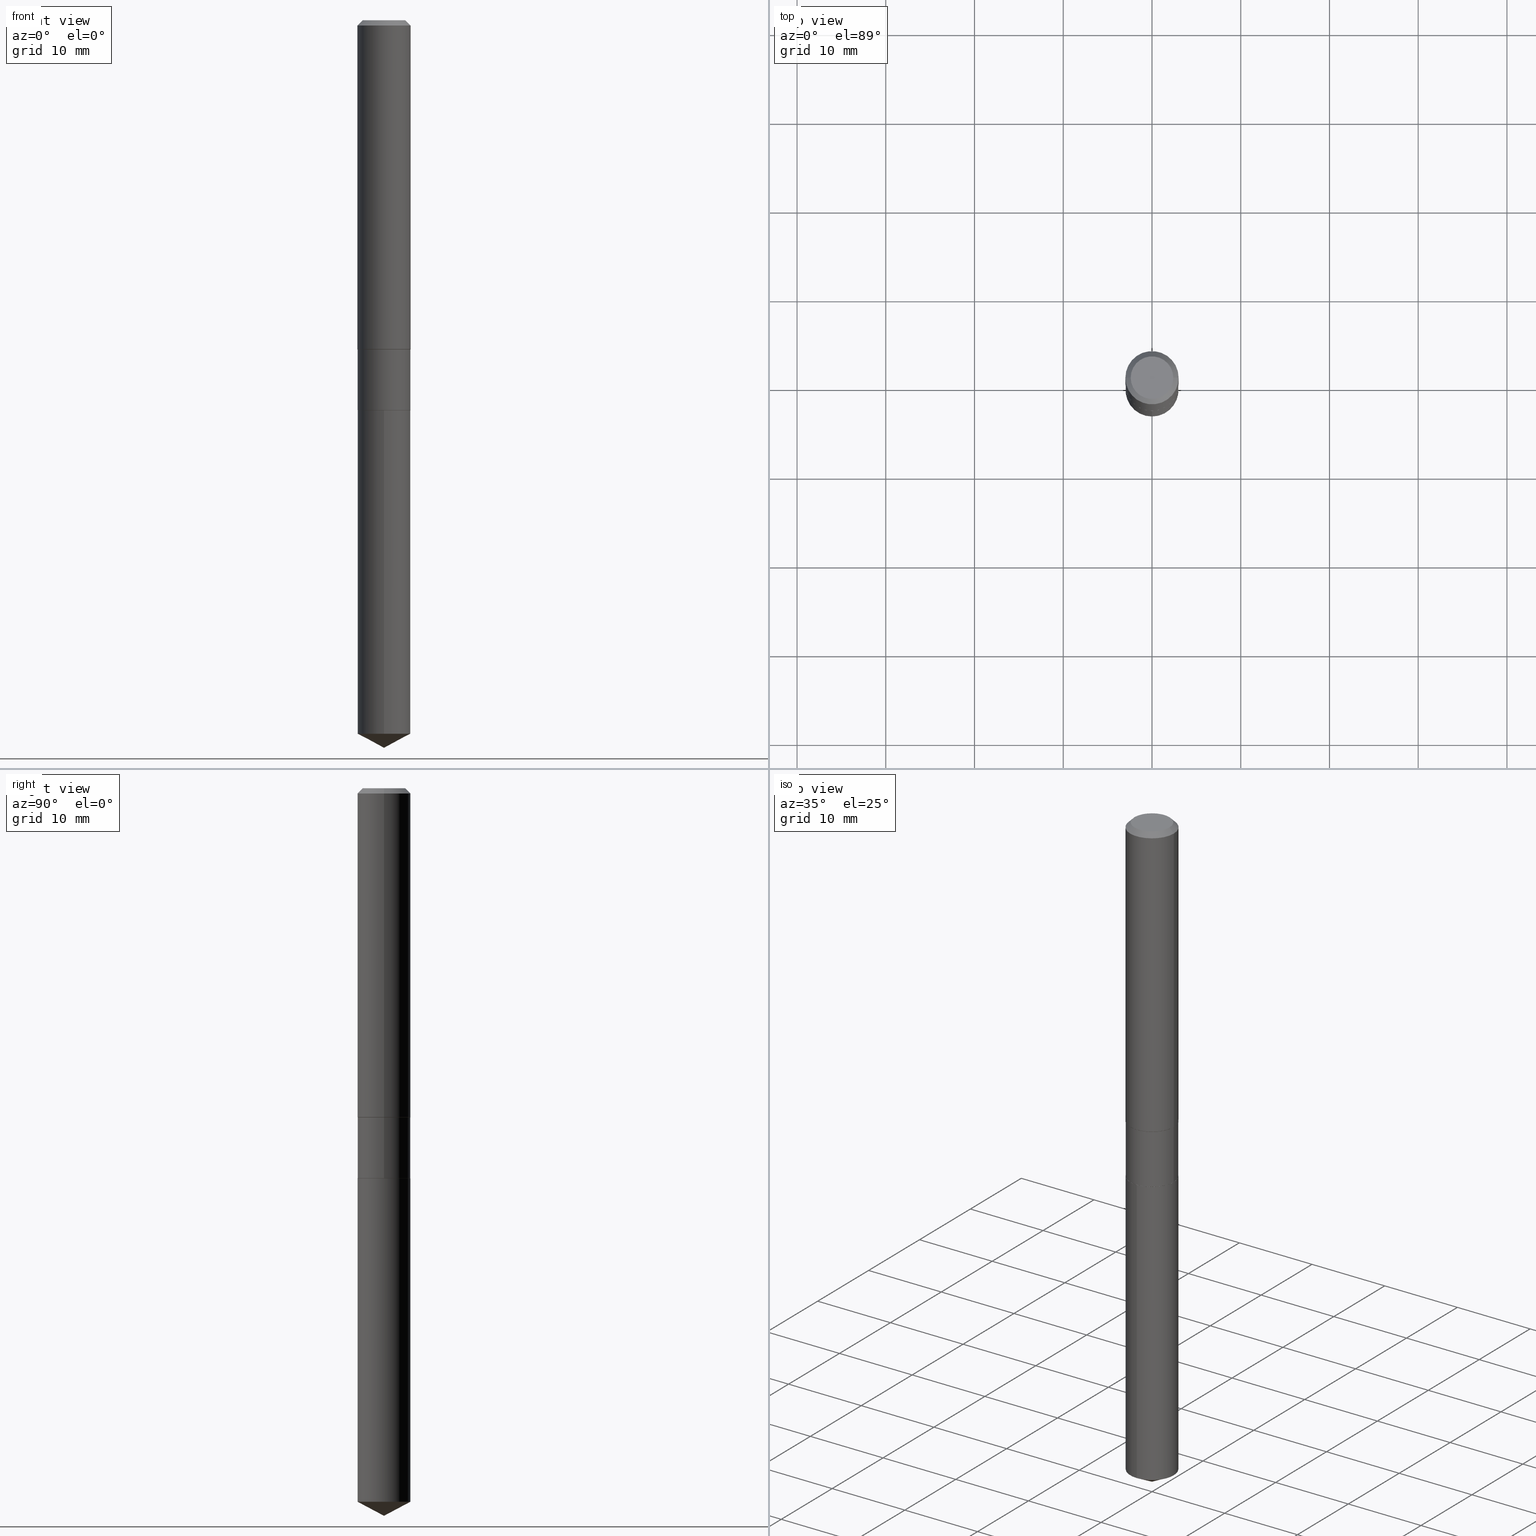
[diagram: canonical four-view strip — front | top / right | iso, engineering-drawing reading convention]
A machine part, canonical four-view strip (front | top / right | iso — engineering-drawing reading convention). The complete STEP part file that produces these views, byte-faithful:
ISO-10303-21;
HEADER;
FILE_DESCRIPTION (( 'STEP AP203' ),
    '1' );
FILE_NAME ('54809.STEP',
    '2024-04-24T15:50:24',
    ( '' ),
    ( '' ),
    'SwSTEP 2.0',
    'SolidWorks 2023',
    '' );
FILE_SCHEMA (( 'CONFIG_CONTROL_DESIGN' ));
ENDSEC;

DATA;
#1 = LENGTH_MEASURE_WITH_UNIT ( LENGTH_MEASURE( 0.02539999999999999897 ), #480 );
#2 = CARTESIAN_POINT ( 'NONE',  ( 3.572340832075246748E-29, -5.100355939782065986E-15, -1.460799999999999876 ) ) ;
#3 = PERSON_AND_ORGANIZATION_ROLE ( 'design_owner' ) ;
#4 = DATE_AND_TIME ( #342, #271 ) ;
#5 = AXIS2_PLACEMENT_3D ( 'NONE', #394, #54, #248 ) ;
#6 = LINE ( 'NONE', #238, #213 ) ;
#7 = PLANE ( 'NONE',  #293 ) ;
#8 = CARTESIAN_POINT ( 'NONE',  ( 0.1171999999999999709, -5.918759165606896047E-15, -1.460799999999999876 ) ) ;
#9 = AXIS2_PLACEMENT_3D ( 'NONE', #463, #461, #459 ) ;
#10 = AXIS2_PLACEMENT_3D ( 'NONE', #250, #20, #180 ) ;
#11 = DIRECTION ( 'NONE',  ( -2.445468806185136597E-29, 3.491481338843145583E-15, 1.000000000000000000 ) ) ;
#12 = EDGE_CURVE ( 'NONE', #139, #434, #409, .T. ) ;
#13 = ADVANCED_FACE ( 'NONE', ( #193 ), #166, .T. ) ;
#14 = CARTESIAN_POINT ( 'NONE',  ( 0.1180999999999999966, -8.926936027602933910E-16, -0.02362000000000014088 ) ) ;
#15 = LINE ( 'NONE', #182, #74 ) ;
#16 = DIRECTION ( 'NONE',  ( -2.445468806185136597E-29, 3.491481338843145583E-15, 1.000000000000000000 ) ) ;
#17 = COORDINATED_UNIVERSAL_TIME_OFFSET ( 5, 0, .BEHIND. ) ;
#18 = VERTEX_POINT ( 'NONE', #82 ) ;
#19 = ORIENTED_EDGE ( 'NONE', *, *, #105, .F. ) ;
#20 = DIRECTION ( 'NONE',  ( -2.445547445616440637E-29, 3.491368722701639557E-15, 1.000000000000000000 ) ) ;
#21 = DIRECTION ( 'NONE',  ( -2.445468806185136597E-29, 3.491481338843145583E-15, 1.000000000000000000 ) ) ;
#22 = CIRCLE ( 'NONE', #344, 0.1181000000000001632 ) ;
#23 = AXIS2_PLACEMENT_3D ( 'NONE', #61, #292, #476 ) ;
#24 = DIRECTION ( 'NONE',  ( -2.445468806185136597E-29, 3.491481338843145583E-15, 1.000000000000000000 ) ) ;
#25 = CARTESIAN_POINT ( 'NONE',  ( 7.894227154449871016E-29, -1.127013823688089218E-14, -3.228000000000000203 ) ) ;
#26 = CARTESIAN_POINT ( 'NONE',  ( 0.1171999999999999986, -6.858316793889587922E-15, -1.729899999999999993 ) ) ;
#27 = DIMENSIONAL_EXPONENTS ( 1.000000000000000000, 0.000000000000000000, 0.000000000000000000, 0.000000000000000000, 0.000000000000000000, 0.000000000000000000, 0.000000000000000000 ) ;
#28 = LINE ( 'NONE', #285, #127 ) ;
#29 = APPROVAL_DATE_TIME ( #287, #85 ) ;
#30 = PRODUCT_DEFINITION_SHAPE ( 'NONE', 'NONE',  #331 ) ;
#31 = ORIENTED_EDGE ( 'NONE', *, *, #419, .F. ) ;
#32 = CONICAL_SURFACE ( 'NONE', #424, 0.1180999999999999966, 0.7853981633974461696 ) ;
#33 = LOCAL_TIME ( 11, 50, 24.00000000000000000, #77 ) ;
#34 = ADVANCED_FACE ( 'NONE', ( #52 ), #369, .T. ) ;
#35 = PERSON_AND_ORGANIZATION ( #336, #295 ) ;
#36 = ORIENTED_EDGE ( 'NONE', *, *, #487, .F. ) ;
#37 = APPROVAL_ROLE ( '' ) ;
#38 = UNCERTAINTY_MEASURE_WITH_UNIT (LENGTH_MEASURE( 1.000000000000000082E-05 ), #335, 'distance_accuracy_value', 'NONE');
#39 = VERTEX_POINT ( 'NONE', #124 ) ;
#40 = ADVANCED_FACE ( 'NONE', ( #274 ), #7, .F. ) ;
#41 = ORIENTED_EDGE ( 'NONE', *, *, #355, .F. ) ;
#42 = AXIS2_PLACEMENT_3D ( 'NONE', #389, #11, #251 ) ;
#43 = DIRECTION ( 'NONE',  ( -0.7071067811865460184, 2.468850131082241283E-15, -0.7071067811865490160 ) ) ;
#44 = APPLICATION_PROTOCOL_DEFINITION ( 'international standard', 'config_control_design', 1994, #414 ) ;
#45 = DIRECTION ( 'NONE',  ( -2.445468806185136597E-29, 3.491481338843145583E-15, 1.000000000000000000 ) ) ;
#46 = PERSON_AND_ORGANIZATION ( #336, #295 ) ;
#47 = MANIFOLD_SOLID_BREP ( 'Body-Move/Copy2[1]', #162 ) ;
#48 = DIRECTION ( 'NONE',  ( 6.982962677686265922E-15, 1.000000000000000000, -3.491368722701639163E-15 ) ) ;
#49 = ADVANCED_FACE ( 'NONE', ( #86 ), #80, .T. ) ;
#50 = AXIS2_PLACEMENT_3D ( 'NONE', #277, #347, #422 ) ;
#51 = CIRCLE ( 'NONE', #23, 0.09447999999999998066 ) ;
#52 = FACE_OUTER_BOUND ( 'NONE', #399, .T. ) ;
#53 = DIRECTION ( 'NONE',  ( 0.7071067811864267805, -2.468850131080992517E-15, 0.7071067811866682540 ) ) ;
#54 = DIRECTION ( 'NONE',  ( -2.445468806185136597E-29, 3.491481338843145583E-15, 1.000000000000000000 ) ) ;
#55 = EDGE_CURVE ( 'NONE', #294, #330, #102, .T. ) ;
#56 = ORIENTED_EDGE ( 'NONE', *, *, #364, .T. ) ;
#57 = ORIENTED_EDGE ( 'NONE', *, *, #466, .T. ) ;
#58 = AXIS2_PLACEMENT_3D ( 'NONE', #281, #427, #315 ) ;
#59 = AXIS2_PLACEMENT_3D ( 'NONE', #134, #360, #435 ) ;
#60 = DIRECTION ( 'NONE',  ( 1.000000000000000000, -6.982962677686266711E-15, 4.876176775795936353E-29 ) ) ;
#61 = CARTESIAN_POINT ( 'NONE',  ( 6.603013411620882309E-46, -9.427353171913646324E-32, -2.700101262760083747E-17 ) ) ;
#62 = CARTESIAN_POINT ( 'NONE',  ( 7.741693497487502806E-29, -1.105276376864190522E-14, -3.165683654609275255 ) ) ;
#63 = DIRECTION ( 'NONE',  ( -6.982962677686265922E-15, -1.000000000000000000, 2.330928322239132474E-15 ) ) ;
#64 = FACE_OUTER_BOUND ( 'NONE', #388, .T. ) ;
#65 = LINE ( 'NONE', #171, #410 ) ;
#66 = DIRECTION ( 'NONE',  ( 2.438088387897960049E-29, -3.491481338843145188E-15, -1.000000000000000000 ) ) ;
#67 = CIRCLE ( 'NONE', #10, 0.1171999999999999986 ) ;
#68 = SHAPE_DEFINITION_REPRESENTATION ( #30, #69 ) ;
#69 = ADVANCED_BREP_SHAPE_REPRESENTATION ( '54809', ( #47, #373, #263 ), #377 ) ;
#70 = DIRECTION ( 'NONE',  ( 1.000000000000000000, -6.982962677686270655E-15, 0.000000000000000000 ) ) ;
#71 = EDGE_CURVE ( 'NONE', #95, #178, #196, .T. ) ;
#72 = EDGE_CURVE ( 'NONE', #39, #188, #6, .T. ) ;
#73 = AXIS2_PLACEMENT_3D ( 'NONE', #232, #308, #118 ) ;
#74 = VECTOR ( 'NONE', #219, 39.37007874015748143 ) ;
#75 = APPROVAL_ROLE ( '' ) ;
#76 = ORIENTED_EDGE ( 'NONE', *, *, #244, .F. ) ;
#77 = COORDINATED_UNIVERSAL_TIME_OFFSET ( 5, 0, .BEHIND. ) ;
#78 = CARTESIAN_POINT ( 'NONE',  ( 4.231639222222761092E-29, -6.041659308734179365E-15, -1.730400000000000160 ) ) ;
#79 = PRODUCT_DEFINITION_FORMATION_WITH_SPECIFIED_SOURCE ( 'ANY', '', #450, .NOT_KNOWN. ) ;
#80 = CYLINDRICAL_SURFACE ( 'NONE', #73, 0.1171999999999999847 ) ;
#81 = SECURITY_CLASSIFICATION_LEVEL ( 'unclassified' ) ;
#82 = CARTESIAN_POINT ( 'NONE',  ( 8.327560863109148150E-16, 0.1171999999999889519, -3.165683654609275699 ) ) ;
#83 = EDGE_CURVE ( 'NONE', #247, #434, #165, .T. ) ;
#84 = CARTESIAN_POINT ( 'NONE',  ( -0.1180999999999999966, 7.422191030112725094E-16, -0.02362000000000014088 ) ) ;
#85 = APPROVAL ( #437, 'UNSPECIFIED' ) ;
#86 = FACE_OUTER_BOUND ( 'NONE', #108, .T. ) ;
#87 = APPROVAL ( #411, 'UNSPECIFIED' ) ;
#88 = DIRECTION ( 'NONE',  ( -6.982962677686268288E-15, -1.000000000000000000, 3.541896320645563630E-15 ) ) ;
#89 = VERTEX_POINT ( 'NONE', #8 ) ;
#90 = DIRECTION ( 'NONE',  ( -6.982962677686265922E-15, -1.000000000000000000, 4.661856644478264948E-15 ) ) ;
#91 = EDGE_LOOP ( 'NONE', ( #449, #390, #482, #176 ) ) ;
#92 = CIRCLE ( 'NONE', #5, 0.1171999999999999709 ) ;
#93 = LOCAL_TIME ( 11, 50, 24.00000000000000000, #155 ) ;
#94 = FACE_OUTER_BOUND ( 'NONE', #288, .T. ) ;
#95 = VERTEX_POINT ( 'NONE', #235 ) ;
#96 = CYLINDRICAL_SURFACE ( 'NONE', #198, 0.1171999999999999986 ) ;
#97 = FACE_OUTER_BOUND ( 'NONE', #154, .T. ) ;
#98 = EDGE_CURVE ( 'NONE', #294, #39, #387, .T. ) ;
#99 = FACE_OUTER_BOUND ( 'NONE', #368, .T. ) ;
#100 = DIRECTION ( 'NONE',  ( -2.445468806185136597E-29, 3.491481338843145583E-15, 1.000000000000000000 ) ) ;
#101 = CARTESIAN_POINT ( 'NONE',  ( 4.231639222222760531E-29, -6.041659308734178576E-15, -1.730399999999999938 ) ) ;
#102 = CIRCLE ( 'NONE', #50, 0.1171999999999999986 ) ;
#103 = CIRCLE ( 'NONE', #59, 0.1171999999999999986 ) ;
#104 = ORIENTED_EDGE ( 'NONE', *, *, #216, .T. ) ;
#105 = EDGE_CURVE ( 'NONE', #259, #330, #386, .T. ) ;
#106 = LINE ( 'NONE', #474, #359 ) ;
#107 = ADVANCED_FACE ( 'NONE', ( #200 ), #152, .T. ) ;
#108 = EDGE_LOOP ( 'NONE', ( #264, #161, #76, #110 ) ) ;
#109 = CALENDAR_DATE ( 2024, 24, 4 ) ;
#110 = ORIENTED_EDGE ( 'NONE', *, *, #380, .F. ) ;
#111 = DESIGN_CONTEXT ( 'detailed design', #408, 'design' ) ;
#112 = ORIENTED_EDGE ( 'NONE', *, *, #298, .F. ) ;
#113 = LOCAL_TIME ( 11, 50, 24.00000000000000000, #17 ) ;
#114 = DATE_AND_TIME ( #453, #192 ) ;
#115 = CC_DESIGN_DATE_AND_TIME_ASSIGNMENT ( #4, #163, ( #257 ) ) ;
#116 = ORIENTED_EDGE ( 'NONE', *, *, #298, .T. ) ;
#117 =( NAMED_UNIT ( * ) PLANE_ANGLE_UNIT ( ) SI_UNIT ( $, .RADIAN. ) );
#118 = DIRECTION ( 'NONE',  ( 1.000000000000000000, -6.982962677686266711E-15, 4.876176775795935793E-29 ) ) ;
#119 = AXIS2_PLACEMENT_3D ( 'NONE', #215, #24, #300 ) ;
#120 = PERSON_AND_ORGANIZATION ( #336, #295 ) ;
#121 = EDGE_CURVE ( 'NONE', #223, #259, #358, .T. ) ;
#122 = DIRECTION ( 'NONE',  ( -0.7071067811865273667, 7.493145998870281585E-15, 0.7071067811865676678 ) ) ;
#123 = ORIENTED_EDGE ( 'NONE', *, *, #440, .F. ) ;
#124 = CARTESIAN_POINT ( 'NONE',  ( -0.1171999999999999709, -4.737378667612574713E-15, -1.460799999999999876 ) ) ;
#125 = DIRECTION ( 'NONE',  ( 1.000000000000000000, -6.982962677686266711E-15, 4.876176775795936353E-29 ) ) ;
#126 = VECTOR ( 'NONE', #53, 39.37007874015748143 ) ;
#127 = VECTOR ( 'NONE', #329, 39.37007874015748143 ) ;
#128 = CARTESIAN_POINT ( 'NONE',  ( 0.000000000000000000, 0.000000000000000000, 0.000000000000000000 ) ) ;
#129 = DIRECTION ( 'NONE',  ( -6.982962677686268288E-15, -1.000000000000000000, 3.541896320645563630E-15 ) ) ;
#130 = ORIENTED_EDGE ( 'NONE', *, *, #279, .T. ) ;
#131 = CARTESIAN_POINT ( 'NONE',  ( -0.1166999999999999982, -5.209806708928030273E-15, -1.730400000000000160 ) ) ;
#132 = ORIENTED_EDGE ( 'NONE', *, *, #207, .T. ) ;
#133 = AXIS2_PLACEMENT_3D ( 'NONE', #349, #328, #181 ) ;
#134 = CARTESIAN_POINT ( 'NONE',  ( 4.231639222222760531E-29, -6.041659308734178576E-15, -1.730399999999999938 ) ) ;
#135 = CONICAL_SURFACE ( 'NONE', #462, 0.1171999999999999709, 0.7853981633974198573 ) ;
#136 = FACE_OUTER_BOUND ( 'NONE', #326, .T. ) ;
#137 = ADVANCED_FACE ( 'NONE', ( #273 ), #381, .T. ) ;
#138 = EDGE_LOOP ( 'NONE', ( #334, #130, #57, #454 ) ) ;
#139 = VERTEX_POINT ( 'NONE', #156 ) ;
#140 = CARTESIAN_POINT ( 'NONE',  ( -0.1180999999999999966, -1.750690226967611791E-15, -0.02362000000000014088 ) ) ;
#141 = CYLINDRICAL_SURFACE ( 'NONE', #307, 0.1181000000000000799 ) ;
#142 = DIRECTION ( 'NONE',  ( -1.000000000000000000, 6.982962677686266711E-15, 0.000000000000000000 ) ) ;
#143 = CARTESIAN_POINT ( 'NONE',  ( -8.184032258247879554E-16, -0.1172000000000060493, -1.730399999999999716 ) ) ;
#144 = EDGE_CURVE ( 'NONE', #330, #294, #160, .T. ) ;
#145 = DIRECTION ( 'NONE',  ( -2.445468806185136597E-29, 3.491481338843145583E-15, 1.000000000000000000 ) ) ;
#146 = AXIS2_PLACEMENT_3D ( 'NONE', #317, #167, #129 ) ;
#147 = VECTOR ( 'NONE', #445, 39.37007874015748143 ) ;
#148 = PRODUCT_RELATED_PRODUCT_CATEGORY ( 'detail', '', ( #450 ) ) ;
#149 = CARTESIAN_POINT ( 'NONE',  ( 1.403036846735455554E-29, -1.009237890448108840E-14, -1.730400000000000160 ) ) ;
#150 = DATE_TIME_ROLE ( 'creation_date' ) ;
#151 = EDGE_LOOP ( 'NONE', ( #226, #255, #430, #221 ) ) ;
#152 = CONICAL_SURFACE ( 'NONE', #179, 0.1166999999999999982, 0.7853981633972775267 ) ;
#153 = CC_DESIGN_SECURITY_CLASSIFICATION ( #257, ( #79 ) ) ;
#154 = EDGE_LOOP ( 'NONE', ( #31, #175, #170 ) ) ;
#155 = COORDINATED_UNIVERSAL_TIME_OFFSET ( 5, 0, .BEHIND. ) ;
#156 = CARTESIAN_POINT ( 'NONE',  ( 0.1180999999999999966, -9.071566814582237199E-16, -0.02362000000000014088 ) ) ;
#157 = CC_DESIGN_PERSON_AND_ORGANIZATION_ASSIGNMENT ( #35, #413, ( #331 ) ) ;
#158 = EDGE_CURVE ( 'NONE', #225, #139, #357, .T. ) ;
#159 = DIRECTION ( 'NONE',  ( 1.000000000000000000, -6.982962677686263555E-15, 0.000000000000000000 ) ) ;
#160 = CIRCLE ( 'NONE', #350, 0.1171999999999999986 ) ;
#161 = ORIENTED_EDGE ( 'NONE', *, *, #98, .T. ) ;
#162 = CLOSED_SHELL ( 'NONE', ( #275, #194, #224, #348, #40 ) ) ;
#163 = DATE_TIME_ROLE ( 'classification_date' ) ;
#164 = CARTESIAN_POINT ( 'NONE',  ( 4.231639222222761092E-29, -6.041659308734179365E-15, -1.730400000000000160 ) ) ;
#165 = LINE ( 'NONE', #84, #256 ) ;
#166 = CONICAL_SURFACE ( 'NONE', #197, 0.1171999999999999709, 0.7853981633974198573 ) ;
#167 = DIRECTION ( 'NONE',  ( -2.445547445616440637E-29, 3.491368722701639557E-15, 1.000000000000000000 ) ) ;
#168 = ORIENTED_EDGE ( 'NONE', *, *, #455, .F. ) ;
#169 = CARTESIAN_POINT ( 'NONE',  ( -8.838730441993231059E-28, 1.261851284158344418E-13, 36.14207874015747990 ) ) ;
#170 = ORIENTED_EDGE ( 'NONE', *, *, #216, .F. ) ;
#171 = CARTESIAN_POINT ( 'NONE',  ( 0.1171999999999999847, -8.184032258248303567E-16, 5.714879181232835774E-30 ) ) ;
#172 = EDGE_LOOP ( 'NONE', ( #352, #266, #406, #412 ) ) ;
#173 = DIRECTION ( 'NONE',  ( 1.000000000000000000, -6.982962677686263555E-15, 0.000000000000000000 ) ) ;
#174 = CALENDAR_DATE ( 2024, 24, 4 ) ;
#175 = ORIENTED_EDGE ( 'NONE', *, *, #332, .T. ) ;
#176 = ORIENTED_EDGE ( 'NONE', *, *, #466, .F. ) ;
#177 = CIRCLE ( 'NONE', #481, 0.1171999999999999709 ) ;
#178 = VERTEX_POINT ( 'NONE', #143 ) ;
#179 = AXIS2_PLACEMENT_3D ( 'NONE', #78, #230, #313 ) ;
#180 = DIRECTION ( 'NONE',  ( -6.982962677686265922E-15, -1.000000000000000000, 2.330928322239132474E-15 ) ) ;
#181 = DIRECTION ( 'NONE',  ( 1.000000000000000000, -6.982962677686266711E-15, 4.876176775795935793E-29 ) ) ;
#182 = CARTESIAN_POINT ( 'NONE',  ( 0.1181000000000000799, -8.246878922347486570E-16, 5.758764772215004644E-30 ) ) ;
#183 = FACE_OUTER_BOUND ( 'NONE', #151, .T. ) ;
#184 = CC_DESIGN_DATE_AND_TIME_ASSIGNMENT ( #486, #150, ( #331 ) ) ;
#185 = LINE ( 'NONE', #353, #147 ) ;
#186 = AXIS2_PLACEMENT_3D ( 'NONE', #169, #475, #88 ) ;
#187 = CC_DESIGN_APPROVAL ( #87, ( #79 ) ) ;
#188 = VERTEX_POINT ( 'NONE', #351 ) ;
#189 = EDGE_CURVE ( 'NONE', #225, #247, #433, .T. ) ;
#190 = APPLICATION_PROTOCOL_DEFINITION ( 'international standard', 'config_control_design', 1994, #408 ) ;
#191 = VECTOR ( 'NONE', #246, 39.37007874015748854 ) ;
#192 = LOCAL_TIME ( 11, 50, 24.00000000000000000, #303 ) ;
#193 = FACE_OUTER_BOUND ( 'NONE', #372, .T. ) ;
#194 = ADVANCED_FACE ( 'NONE', ( #97 ), #229, .T. ) ;
#195 = PERSON_AND_ORGANIZATION_ROLE ( 'classification_officer' ) ;
#196 = LINE ( 'NONE', #423, #338 ) ;
#197 = AXIS2_PLACEMENT_3D ( 'NONE', #2, #460, #159 ) ;
#198 = AXIS2_PLACEMENT_3D ( 'NONE', #101, #407, #63 ) ;
#199 = CARTESIAN_POINT ( 'NONE',  ( 0.1166999999999999982, -6.856571053220166418E-15, -1.730400000000000160 ) ) ;
#200 = FACE_OUTER_BOUND ( 'NONE', #478, .T. ) ;
#201 = DIRECTION ( 'NONE',  ( -1.000000000000000000, 6.982962677686265922E-15, -4.876176775795935793E-29 ) ) ;
#202 = ORIENTED_EDGE ( 'NONE', *, *, #244, .T. ) ;
#203 = CONICAL_SURFACE ( 'NONE', #186, 74.04434902938348273, 1.082104136236486269 ) ;
#204 = CIRCLE ( 'NONE', #304, 0.1171999999999999986 ) ;
#205 = ORIENTED_EDGE ( 'NONE', *, *, #490, .T. ) ;
#206 = FACE_OUTER_BOUND ( 'NONE', #488, .T. ) ;
#207 = EDGE_CURVE ( 'NONE', #39, #89, #92, .T. ) ;
#208 = FACE_OUTER_BOUND ( 'NONE', #172, .T. ) ;
#209 = LINE ( 'NONE', #290, #402 ) ;
#210 = DIRECTION ( 'NONE',  ( 1.000000000000000000, -6.982962677686265922E-15, 4.876176775795935793E-29 ) ) ;
#211 = DIRECTION ( 'NONE',  ( -1.000000000000000000, 6.982962677686266711E-15, 0.000000000000000000 ) ) ;
#212 = ORIENTED_EDGE ( 'NONE', *, *, #72, .F. ) ;
#213 = VECTOR ( 'NONE', #122, 39.37007874015748143 ) ;
#214 = AXIS2_PLACEMENT_3D ( 'NONE', #149, #397, #210 ) ;
#215 = CARTESIAN_POINT ( 'NONE',  ( 4.231639222222761092E-29, -6.041659308734179365E-15, -1.730400000000000160 ) ) ;
#216 = EDGE_CURVE ( 'NONE', #95, #18, #245, .T. ) ;
#217 = CARTESIAN_POINT ( 'NONE',  ( 0.1166999999999999982, -6.856571053220166418E-15, -1.730400000000000160 ) ) ;
#218 = ORIENTED_EDGE ( 'NONE', *, *, #237, .F. ) ;
#219 = DIRECTION ( 'NONE',  ( -2.445468806185136877E-29, 3.491481338843145188E-15, 1.000000000000000000 ) ) ;
#220 = PLANE ( 'NONE',  #214 ) ;
#221 = ORIENTED_EDGE ( 'NONE', *, *, #207, .F. ) ;
#222 = AXIS2_PLACEMENT_3D ( 'NONE', #164, #346, #378 ) ;
#223 = VERTEX_POINT ( 'NONE', #131 ) ;
#224 = ADVANCED_FACE ( 'NONE', ( #94 ), #203, .T. ) ;
#225 = VERTEX_POINT ( 'NONE', #282 ) ;
#226 = ORIENTED_EDGE ( 'NONE', *, *, #98, .F. ) ;
#227 = CALENDAR_DATE ( 2024, 24, 4 ) ;
#228 = CC_DESIGN_PERSON_AND_ORGANIZATION_ASSIGNMENT ( #46, #195, ( #257 ) ) ;
#229 = CONICAL_SURFACE ( 'NONE', #146, 74.04434902938348273, 1.082104136236486269 ) ;
#230 = DIRECTION ( 'NONE',  ( -2.445468806185136597E-29, 3.491481338843145583E-15, 1.000000000000000000 ) ) ;
#231 = APPROVAL_PERSON_ORGANIZATION ( #456, #85, #362 ) ;
#232 = CARTESIAN_POINT ( 'NONE',  ( 0.000000000000000000, 0.000000000000000000, 0.000000000000000000 ) ) ;
#233 = COORDINATED_UNIVERSAL_TIME_OFFSET ( 5, 0, .BEHIND. ) ;
#234 = DIRECTION ( 'NONE',  ( 1.000000000000000000, -6.982962677686269866E-15, 0.000000000000000000 ) ) ;
#235 = CARTESIAN_POINT ( 'NONE',  ( -8.184032258247529497E-16, -0.1172000000000110592, -3.165683654609274367 ) ) ;
#236 = AXIS2_PLACEMENT_3D ( 'NONE', #243, #21, #471 ) ;
#237 = EDGE_CURVE ( 'NONE', #89, #444, #209, .T. ) ;
#238 = CARTESIAN_POINT ( 'NONE',  ( -0.1171999999999999709, -4.267599853471228775E-15, -1.460799999999999876 ) ) ;
#239 = ORIENTED_EDGE ( 'NONE', *, *, #332, .F. ) ;
#240 = CYLINDRICAL_SURFACE ( 'NONE', #133, 0.1171999999999999847 ) ;
#241 = VERTEX_POINT ( 'NONE', #25 ) ;
#242 = APPROVAL ( #306, 'UNSPECIFIED' ) ;
#243 = CARTESIAN_POINT ( 'NONE',  ( 3.570139910149679929E-29, -5.097213606577107280E-15, -1.459899999999999531 ) ) ;
#244 = EDGE_CURVE ( 'NONE', #89, #39, #177, .T. ) ;
#245 = CIRCLE ( 'NONE', #417, 0.1171999999999999986 ) ;
#246 = DIRECTION ( 'NONE',  ( 6.273719981627763710E-15, 0.8829475928589293199, 0.4694715627858859208 ) ) ;
#247 = VERTEX_POINT ( 'NONE', #428 ) ;
#248 = DIRECTION ( 'NONE',  ( 1.000000000000000000, -6.982962677686263555E-15, 0.000000000000000000 ) ) ;
#249 = ORIENTED_EDGE ( 'NONE', *, *, #341, .T. ) ;
#250 = CARTESIAN_POINT ( 'NONE',  ( 4.231639222222760531E-29, -6.041659308734178576E-15, -1.730399999999999938 ) ) ;
#251 = DIRECTION ( 'NONE',  ( 1.000000000000000000, -6.982962677686267499E-15, 4.875432709231658792E-29 ) ) ;
#252 = DIRECTION ( 'NONE',  ( 1.000000000000000000, -6.982962677686263555E-15, 0.000000000000000000 ) ) ;
#253 = CARTESIAN_POINT ( 'NONE',  ( -0.1172000000000000125, -4.737378667612574713E-15, -1.729899999999999993 ) ) ;
#254 = ORIENTED_EDGE ( 'NONE', *, *, #490, .F. ) ;
#255 = ORIENTED_EDGE ( 'NONE', *, *, #55, .T. ) ;
#256 = VECTOR ( 'NONE', #43, 39.37007874015748143 ) ;
#257 = SECURITY_CLASSIFICATION ( '', '', #81 ) ;
#258 = DIRECTION ( 'NONE',  ( 1.000000000000000000, -6.982962677686266711E-15, 0.000000000000000000 ) ) ;
#259 = VERTEX_POINT ( 'NONE', #217 ) ;
#260 = CARTESIAN_POINT ( 'NONE',  ( 3.570139910149679929E-29, -5.097213606577107280E-15, -1.459899999999999531 ) ) ;
#261 = APPROVAL_DATE_TIME ( #489, #242 ) ;
#262 = CLOSED_SHELL ( 'NONE', ( #107, #395, #325, #415, #49, #267, #13, #137, #309, #278, #365, #34 ) ) ;
#263 = AXIS2_PLACEMENT_3D ( 'NONE', #379, #416, #268 ) ;
#264 = ORIENTED_EDGE ( 'NONE', *, *, #144, .T. ) ;
#265 = APPROVAL_DATE_TIME ( #114, #87 ) ;
#266 = ORIENTED_EDGE ( 'NONE', *, *, #158, .T. ) ;
#267 = ADVANCED_FACE ( 'NONE', ( #183 ), #240, .T. ) ;
#268 = DIRECTION ( 'NONE',  ( 1.000000000000000000, 0.000000000000000000, 0.000000000000000000 ) ) ;
#269 = ORIENTED_EDGE ( 'NONE', *, *, #121, .F. ) ;
#270 = DIRECTION ( 'NONE',  ( -2.445468806185136597E-29, 3.491481338843145583E-15, 1.000000000000000000 ) ) ;
#271 = LOCAL_TIME ( 11, 50, 24.00000000000000000, #233 ) ;
#272 = PERSON_AND_ORGANIZATION_ROLE ( 'creator' ) ;
#273 = FACE_OUTER_BOUND ( 'NONE', #138, .T. ) ;
#274 = FACE_OUTER_BOUND ( 'NONE', #302, .T. ) ;
#275 = ADVANCED_FACE ( 'NONE', ( #206 ), #477, .T. ) ;
#276 = CARTESIAN_POINT ( 'NONE',  ( -0.1171999999999999847, 8.327560863108373095E-16, -5.764991925778748420E-30 ) ) ;
#277 = CARTESIAN_POINT ( 'NONE',  ( 4.230416487819667730E-29, -6.039913568064757072E-15, -1.729899999999999993 ) ) ;
#278 = ADVANCED_FACE ( 'NONE', ( #136 ), #319, .F. ) ;
#279 = EDGE_CURVE ( 'NONE', #188, #444, #451, .T. ) ;
#280 = ORIENTED_EDGE ( 'NONE', *, *, #55, .F. ) ;
#281 = CARTESIAN_POINT ( 'NONE',  ( 4.231639222222760531E-29, -6.041659308734178576E-15, -1.730399999999999938 ) ) ;
#282 = CARTESIAN_POINT ( 'NONE',  ( 0.09447999999999998066, -7.704367267948738690E-16, -2.700101262759583929E-17 ) ) ;
#283 = ORIENTED_EDGE ( 'NONE', *, *, #419, .T. ) ;
#284 = CIRCLE ( 'NONE', #472, 0.1180999999999999966 ) ;
#285 = CARTESIAN_POINT ( 'NONE',  ( -0.1181000000000000799, 8.391509709326788873E-16, -5.809262341591047988E-30 ) ) ;
#286 = LINE ( 'NONE', #361, #457 ) ;
#287 = DATE_AND_TIME ( #174, #113 ) ;
#288 = EDGE_LOOP ( 'NONE', ( #239, #283, #254 ) ) ;
#289 = CARTESIAN_POINT ( 'NONE',  ( 5.776197320209327532E-31, -8.246878922347559293E-17, -0.02362000000000014088 ) ) ;
#290 = CARTESIAN_POINT ( 'NONE',  ( 0.1171999999999999709, -5.918759165606896047E-15, -1.460799999999999876 ) ) ;
#291 = EDGE_LOOP ( 'NONE', ( #112, #205, #316, #467 ) ) ;
#292 = DIRECTION ( 'NONE',  ( -2.445468806185136597E-29, 3.491481338843145583E-15, 1.000000000000000000 ) ) ;
#293 = AXIS2_PLACEMENT_3D ( 'NONE', #384, #425, #48 ) ;
#294 = VERTEX_POINT ( 'NONE', #253 ) ;
#295 = ORGANIZATION ( 'UNSPECIFIED', 'UNSPECIFIED', '' ) ;
#296 = DIRECTION ( 'NONE',  ( -2.445468806185136597E-29, 3.491481338843145583E-15, 1.000000000000000000 ) ) ;
#297 = ORIENTED_EDGE ( 'NONE', *, *, #440, .T. ) ;
#298 = EDGE_CURVE ( 'NONE', #18, #448, #286, .T. ) ;
#299 = ORIENTED_EDGE ( 'NONE', *, *, #279, .F. ) ;
#300 = DIRECTION ( 'NONE',  ( 1.000000000000000000, -6.982962677686265133E-15, 0.000000000000000000 ) ) ;
#301 =( NAMED_UNIT ( * ) SI_UNIT ( $, .STERADIAN. ) SOLID_ANGLE_UNIT ( ) );
#302 = EDGE_LOOP ( 'NONE', ( #56, #249 ) ) ;
#303 = COORDINATED_UNIVERSAL_TIME_OFFSET ( 5, 0, .BEHIND. ) ;
#304 = AXIS2_PLACEMENT_3D ( 'NONE', #442, #404, #363 ) ;
#305 = CARTESIAN_POINT ( 'NONE',  ( 4.230416487819667730E-29, -6.039913568064757072E-15, -1.729899999999999993 ) ) ;
#306 = APPROVAL_STATUS ( 'not_yet_approved' ) ;
#307 = AXIS2_PLACEMENT_3D ( 'NONE', #439, #100, #60 ) ;
#308 = DIRECTION ( 'NONE',  ( -2.445468806185136597E-29, 3.491481338843145583E-15, 1.000000000000000000 ) ) ;
#309 = ADVANCED_FACE ( 'NONE', ( #64 ), #32, .T. ) ;
#310 = DIRECTION ( 'NONE',  ( 1.000000000000000000, -6.982962677686266711E-15, 0.000000000000000000 ) ) ;
#311 = ORIENTED_EDGE ( 'NONE', *, *, #237, .T. ) ;
#312 = DIRECTION ( 'NONE',  ( -2.445468806185136877E-29, 3.491481338843145188E-15, 1.000000000000000000 ) ) ;
#313 = DIRECTION ( 'NONE',  ( 1.000000000000000000, -6.982962677686265133E-15, 0.000000000000000000 ) ) ;
#314 = CC_DESIGN_PERSON_AND_ORGANIZATION_ASSIGNMENT ( #383, #421, ( #79 ) ) ;
#315 = DIRECTION ( 'NONE',  ( -6.982962677686265922E-15, -1.000000000000000000, 2.330928322239132474E-15 ) ) ;
#316 = ORIENTED_EDGE ( 'NONE', *, *, #71, .T. ) ;
#317 = CARTESIAN_POINT ( 'NONE',  ( -8.838730441993231059E-28, 1.261851284158344418E-13, 36.14207874015747990 ) ) ;
#318 = LINE ( 'NONE', #484, #191 ) ;
#319 = PLANE ( 'NONE',  #392 ) ;
#320 = VECTOR ( 'NONE', #312, 39.37007874015748143 ) ;
#321 = CIRCLE ( 'NONE', #119, 0.1166999999999999982 ) ;
#322 = ORIENTED_EDGE ( 'NONE', *, *, #72, .T. ) ;
#323 = FACE_OUTER_BOUND ( 'NONE', #446, .T. ) ;
#324 = FACE_OUTER_BOUND ( 'NONE', #91, .T. ) ;
#325 = ADVANCED_FACE ( 'NONE', ( #324 ), #141, .T. ) ;
#326 = EDGE_LOOP ( 'NONE', ( #473, #345 ) ) ;
#327 = CARTESIAN_POINT ( 'NONE',  ( 0.1181000000000001632, -5.921901498811854753E-15, -1.459899999999999531 ) ) ;
#328 = DIRECTION ( 'NONE',  ( -2.445468806185136597E-29, 3.491481338843145583E-15, 1.000000000000000000 ) ) ;
#329 = DIRECTION ( 'NONE',  ( -2.445468806185136877E-29, 3.491481338843145188E-15, 1.000000000000000000 ) ) ;
#330 = VERTEX_POINT ( 'NONE', #26 ) ;
#331 = PRODUCT_DEFINITION ( 'UNKNOWN', '', #79, #111 ) ;
#332 = EDGE_CURVE ( 'NONE', #241, #18, #318, .T. ) ;
#333 = CARTESIAN_POINT ( 'NONE',  ( 3.572340832075246748E-29, -5.100355939782065986E-15, -1.460799999999999876 ) ) ;
#334 = ORIENTED_EDGE ( 'NONE', *, *, #432, .F. ) ;
#335 =( CONVERSION_BASED_UNIT ( 'INCH', #1 ) LENGTH_UNIT ( ) NAMED_UNIT ( #27 ) );
#336 = PERSON ( 'UNSPECIFIED', 'UNSPECIFIED', 'UNSPECIFIED', ('UNSPECIFIED'), ('UNSPECIFIED'), ('UNSPECIFIED') ) ;
#337 = PERSON_AND_ORGANIZATION ( #336, #295 ) ;
#338 = VECTOR ( 'NONE', #343, 39.37007874015748143 ) ;
#339 = CARTESIAN_POINT ( 'NONE',  ( 5.776197320209327532E-31, -8.246878922347559293E-17, -0.02362000000000014088 ) ) ;
#340 = MECHANICAL_CONTEXT ( 'NONE', #414, 'mechanical' ) ;
#341 = EDGE_CURVE ( 'NONE', #448, #178, #103, .T. ) ;
#342 = CALENDAR_DATE ( 2024, 24, 4 ) ;
#343 = DIRECTION ( 'NONE',  ( -2.445547445616440357E-29, 3.491368722701639163E-15, 1.000000000000000000 ) ) ;
#344 = AXIS2_PLACEMENT_3D ( 'NONE', #260, #296, #70 ) ;
#345 = ORIENTED_EDGE ( 'NONE', *, *, #189, .T. ) ;
#346 = DIRECTION ( 'NONE',  ( -2.445468806185136597E-29, 3.491481338843145583E-15, 1.000000000000000000 ) ) ;
#347 = DIRECTION ( 'NONE',  ( -2.445468806185136597E-29, 3.491481338843145583E-15, 1.000000000000000000 ) ) ;
#348 = ADVANCED_FACE ( 'NONE', ( #367 ), #96, .T. ) ;
#349 = CARTESIAN_POINT ( 'NONE',  ( 0.000000000000000000, 0.000000000000000000, 0.000000000000000000 ) ) ;
#350 = AXIS2_PLACEMENT_3D ( 'NONE', #305, #45, #234 ) ;
#351 = CARTESIAN_POINT ( 'NONE',  ( -0.1181000000000001632, -4.258062635644426716E-15, -1.459899999999999531 ) ) ;
#352 = ORIENTED_EDGE ( 'NONE', *, *, #189, .F. ) ;
#353 = CARTESIAN_POINT ( 'NONE',  ( -0.1166999999999999982, -5.212455936102142263E-15, -1.730400000000000160 ) ) ;
#354 = CARTESIAN_POINT ( 'NONE',  ( 3.572340832075246748E-29, -5.100355939782065986E-15, -1.460799999999999876 ) ) ;
#355 = EDGE_CURVE ( 'NONE', #444, #188, #22, .T. ) ;
#356 = DIRECTION ( 'NONE',  ( -2.445468806185136877E-29, 3.491481338843145188E-15, 1.000000000000000000 ) ) ;
#357 = LINE ( 'NONE', #14, #452 ) ;
#358 = CIRCLE ( 'NONE', #9, 0.1166999999999999982 ) ;
#359 = VECTOR ( 'NONE', #400, 39.37007874015748854 ) ;
#360 = DIRECTION ( 'NONE',  ( -2.445547445616440637E-29, 3.491368722701639557E-15, 1.000000000000000000 ) ) ;
#361 = CARTESIAN_POINT ( 'NONE',  ( 8.327560863108796121E-16, 0.1171999999999939479, -1.730400000000000160 ) ) ;
#362 = APPROVAL_ROLE ( '' ) ;
#363 = DIRECTION ( 'NONE',  ( -6.982962677686265922E-15, -1.000000000000000000, 4.661856644478264948E-15 ) ) ;
#364 = EDGE_CURVE ( 'NONE', #178, #448, #67, .T. ) ;
#365 = ADVANCED_FACE ( 'NONE', ( #323 ), #220, .F. ) ;
#366 = ORIENTED_EDGE ( 'NONE', *, *, #158, .F. ) ;
#367 = FACE_OUTER_BOUND ( 'NONE', #291, .T. ) ;
#368 = EDGE_LOOP ( 'NONE', ( #202, #322, #41, #218 ) ) ;
#369 = CONICAL_SURFACE ( 'NONE', #222, 0.1166999999999999982, 0.7853981633972775267 ) ;
#370 = AXIS2_PLACEMENT_3D ( 'NONE', #289, #470, #142 ) ;
#371 = PERSON_AND_ORGANIZATION ( #336, #295 ) ;
#372 = EDGE_LOOP ( 'NONE', ( #212, #132, #311, #299 ) ) ;
#373 = MANIFOLD_SOLID_BREP ( 'Body-Move/Copy2[2]', #262 ) ;
#374 = ORIENTED_EDGE ( 'NONE', *, *, #455, .T. ) ;
#375 = PERSON_AND_ORGANIZATION ( #336, #295 ) ;
#376 = AXIS2_PLACEMENT_3D ( 'NONE', #339, #420, #310 ) ;
#377 =( GEOMETRIC_REPRESENTATION_CONTEXT ( 3 ) GLOBAL_UNCERTAINTY_ASSIGNED_CONTEXT ( ( #38 ) ) GLOBAL_UNIT_ASSIGNED_CONTEXT ( ( #335, #117, #301 ) ) REPRESENTATION_CONTEXT ( 'NONE', 'WORKASPACE' ) );
#378 = DIRECTION ( 'NONE',  ( 1.000000000000000000, -6.982962677686265133E-15, 0.000000000000000000 ) ) ;
#379 = CARTESIAN_POINT ( 'NONE',  ( 0.000000000000000000, 0.000000000000000000, 0.000000000000000000 ) ) ;
#380 = EDGE_CURVE ( 'NONE', #330, #89, #65, .T. ) ;
#381 = CYLINDRICAL_SURFACE ( 'NONE', #385, 0.1181000000000000799 ) ;
#382 = CC_DESIGN_PERSON_AND_ORGANIZATION_ASSIGNMENT ( #371, #3, ( #450 ) ) ;
#383 = PERSON_AND_ORGANIZATION ( #336, #295 ) ;
#384 = CARTESIAN_POINT ( 'NONE',  ( 4.231639222222760531E-29, -6.041659308734178576E-15, -1.730399999999999938 ) ) ;
#385 = AXIS2_PLACEMENT_3D ( 'NONE', #128, #270, #125 ) ;
#386 = LINE ( 'NONE', #199, #126 ) ;
#387 = LINE ( 'NONE', #276, #320 ) ;
#388 = EDGE_LOOP ( 'NONE', ( #366, #36, #426, #396 ) ) ;
#389 = CARTESIAN_POINT ( 'NONE',  ( 6.603013411620882309E-46, -9.427353171913646324E-32, -2.700101262760083747E-17 ) ) ;
#390 = ORIENTED_EDGE ( 'NONE', *, *, #432, .T. ) ;
#391 = DIRECTION ( 'NONE',  ( 2.445468806185136597E-29, -3.491481338843145583E-15, -1.000000000000000000 ) ) ;
#392 = AXIS2_PLACEMENT_3D ( 'NONE', #398, #66, #201 ) ;
#393 = DIRECTION ( 'NONE',  ( -2.445468806185136597E-29, 3.491481338843145583E-15, 1.000000000000000000 ) ) ;
#394 = CARTESIAN_POINT ( 'NONE',  ( 3.572340832075246748E-29, -5.100355939782065986E-15, -1.460799999999999876 ) ) ;
#395 = ADVANCED_FACE ( 'NONE', ( #208 ), #418, .T. ) ;
#396 = ORIENTED_EDGE ( 'NONE', *, *, #465, .T. ) ;
#397 = DIRECTION ( 'NONE',  ( -2.438088387897960049E-29, 3.491481338843145188E-15, 1.000000000000000000 ) ) ;
#398 = CARTESIAN_POINT ( 'NONE',  ( 3.301506705810441154E-46, -4.713676585956823162E-32, -1.350050631380041873E-17 ) ) ;
#399 = EDGE_LOOP ( 'NONE', ( #123, #485, #479, #280 ) ) ;
#400 = DIRECTION ( 'NONE',  ( -6.165590087286832874E-15, -0.8829475928589261002, 0.4694715627858920826 ) ) ;
#401 = DIRECTION ( 'NONE',  ( 0.7071067811865460184, -7.319954787623251312E-15, -0.7071067811865490160 ) ) ;
#402 = VECTOR ( 'NONE', #468, 39.37007874015748143 ) ;
#403 = APPROVAL_PERSON_ORGANIZATION ( #375, #87, #75 ) ;
#404 = DIRECTION ( 'NONE',  ( -2.445547445616440637E-29, 3.491368722701639557E-15, 1.000000000000000000 ) ) ;
#405 = CC_DESIGN_PERSON_AND_ORGANIZATION_ASSIGNMENT ( #120, #272, ( #79 ) ) ;
#406 = ORIENTED_EDGE ( 'NONE', *, *, #12, .T. ) ;
#407 = DIRECTION ( 'NONE',  ( -2.445547445616440637E-29, 3.491368722701639557E-15, 1.000000000000000000 ) ) ;
#408 = APPLICATION_CONTEXT ( 'configuration controlled 3d designs of mechanical parts and assemblies' ) ;
#409 = CIRCLE ( 'NONE', #376, 0.1180999999999999966 ) ;
#410 = VECTOR ( 'NONE', #356, 39.37007874015748143 ) ;
#411 = APPROVAL_STATUS ( 'not_yet_approved' ) ;
#412 = ORIENTED_EDGE ( 'NONE', *, *, #83, .F. ) ;
#413 = PERSON_AND_ORGANIZATION_ROLE ( 'creator' ) ;
#414 = APPLICATION_CONTEXT ( 'configuration controlled 3d designs of mechanical parts and assemblies' ) ;
#415 = ADVANCED_FACE ( 'NONE', ( #99 ), #135, .T. ) ;
#416 = DIRECTION ( 'NONE',  ( 0.000000000000000000, 0.000000000000000000, 1.000000000000000000 ) ) ;
#417 = AXIS2_PLACEMENT_3D ( 'NONE', #62, #431, #90 ) ;
#418 = CONICAL_SURFACE ( 'NONE', #370, 0.1180999999999999966, 0.7853981633974461696 ) ;
#419 = EDGE_CURVE ( 'NONE', #241, #95, #106, .T. ) ;
#420 = DIRECTION ( 'NONE',  ( -2.445468806185136597E-29, 3.491481338843145583E-15, 1.000000000000000000 ) ) ;
#421 = PERSON_AND_ORGANIZATION_ROLE ( 'design_supplier' ) ;
#422 = DIRECTION ( 'NONE',  ( 1.000000000000000000, -6.982962677686269866E-15, 0.000000000000000000 ) ) ;
#423 = CARTESIAN_POINT ( 'NONE',  ( -8.184032258247879554E-16, -0.1172000000000060493, -1.730399999999999716 ) ) ;
#424 = AXIS2_PLACEMENT_3D ( 'NONE', #464, #391, #211 ) ;
#425 = DIRECTION ( 'NONE',  ( 2.445547445616440637E-29, -3.491368722701639163E-15, -1.000000000000000000 ) ) ;
#426 = ORIENTED_EDGE ( 'NONE', *, *, #83, .T. ) ;
#427 = DIRECTION ( 'NONE',  ( -2.445547445616440637E-29, 3.491368722701639557E-15, 1.000000000000000000 ) ) ;
#428 = CARTESIAN_POINT ( 'NONE',  ( -0.09447999999999998066, 7.009847083995354710E-16, -2.700101262760559836E-17 ) ) ;
#429 = ORIENTED_EDGE ( 'NONE', *, *, #144, .F. ) ;
#430 = ORIENTED_EDGE ( 'NONE', *, *, #380, .T. ) ;
#431 = DIRECTION ( 'NONE',  ( -2.445547445616440637E-29, 3.491368722701639557E-15, 1.000000000000000000 ) ) ;
#432 = EDGE_CURVE ( 'NONE', #188, #434, #28, .T. ) ;
#433 = CIRCLE ( 'NONE', #42, 0.09447999999999998066 ) ;
#434 = VERTEX_POINT ( 'NONE', #140 ) ;
#435 = DIRECTION ( 'NONE',  ( -6.982962677686265922E-15, -1.000000000000000000, 2.330928322239132474E-15 ) ) ;
#436 = DIRECTION ( 'NONE',  ( -2.445547445616440357E-29, 3.491368722701639163E-15, 1.000000000000000000 ) ) ;
#437 = APPROVAL_STATUS ( 'not_yet_approved' ) ;
#438 = CARTESIAN_POINT ( 'NONE',  ( 8.327560863109149136E-16, 0.1171999999999939340, -1.730400000000000160 ) ) ;
#439 = CARTESIAN_POINT ( 'NONE',  ( 0.000000000000000000, 0.000000000000000000, 0.000000000000000000 ) ) ;
#440 = EDGE_CURVE ( 'NONE', #223, #294, #185, .T. ) ;
#441 = ORIENTED_EDGE ( 'NONE', *, *, #364, .F. ) ;
#442 = CARTESIAN_POINT ( 'NONE',  ( 7.741693497487502806E-29, -1.105276376864190522E-14, -3.165683654609275255 ) ) ;
#443 = CC_DESIGN_APPROVAL ( #242, ( #331 ) ) ;
#444 = VERTEX_POINT ( 'NONE', #327 ) ;
#445 = DIRECTION ( 'NONE',  ( -0.7071067811864267805, 7.493145998869918709E-15, 0.7071067811866682540 ) ) ;
#446 = EDGE_LOOP ( 'NONE', ( #168, #269 ) ) ;
#447 = CARTESIAN_POINT ( 'NONE',  ( 5.776197320209327532E-31, -8.246878922347559293E-17, -0.02362000000000014088 ) ) ;
#448 = VERTEX_POINT ( 'NONE', #438 ) ;
#449 = ORIENTED_EDGE ( 'NONE', *, *, #355, .T. ) ;
#450 = PRODUCT ( '54809', '54809', '', ( #340 ) ) ;
#451 = CIRCLE ( 'NONE', #236, 0.1181000000000001632 ) ;
#452 = VECTOR ( 'NONE', #401, 39.37007874015748143 ) ;
#453 = CALENDAR_DATE ( 2024, 24, 4 ) ;
#454 = ORIENTED_EDGE ( 'NONE', *, *, #465, .F. ) ;
#455 = EDGE_CURVE ( 'NONE', #259, #223, #321, .T. ) ;
#456 = PERSON_AND_ORGANIZATION ( #336, #295 ) ;
#457 = VECTOR ( 'NONE', #436, 39.37007874015748143 ) ;
#458 = CC_DESIGN_APPROVAL ( #85, ( #257 ) ) ;
#459 = DIRECTION ( 'NONE',  ( 1.000000000000000000, -6.982962677686265133E-15, 0.000000000000000000 ) ) ;
#460 = DIRECTION ( 'NONE',  ( -2.445468806185136597E-29, 3.491481338843145583E-15, 1.000000000000000000 ) ) ;
#461 = DIRECTION ( 'NONE',  ( -2.445468806185136597E-29, 3.491481338843145583E-15, 1.000000000000000000 ) ) ;
#462 = AXIS2_PLACEMENT_3D ( 'NONE', #333, #145, #252 ) ;
#463 = CARTESIAN_POINT ( 'NONE',  ( 4.231639222222761092E-29, -6.041659308734179365E-15, -1.730400000000000160 ) ) ;
#464 = CARTESIAN_POINT ( 'NONE',  ( 5.776197320209327532E-31, -8.246878922347559293E-17, -0.02362000000000014088 ) ) ;
#465 = EDGE_CURVE ( 'NONE', #434, #139, #284, .T. ) ;
#466 = EDGE_CURVE ( 'NONE', #444, #139, #15, .T. ) ;
#467 = ORIENTED_EDGE ( 'NONE', *, *, #341, .F. ) ;
#468 = DIRECTION ( 'NONE',  ( 0.7071067811865273667, -2.468850131082045646E-15, 0.7071067811865676678 ) ) ;
#469 = ORIENTED_EDGE ( 'NONE', *, *, #71, .F. ) ;
#470 = DIRECTION ( 'NONE',  ( 2.445468806185136597E-29, -3.491481338843145583E-15, -1.000000000000000000 ) ) ;
#471 = DIRECTION ( 'NONE',  ( 1.000000000000000000, -6.982962677686270655E-15, 0.000000000000000000 ) ) ;
#472 = AXIS2_PLACEMENT_3D ( 'NONE', #447, #393, #258 ) ;
#473 = ORIENTED_EDGE ( 'NONE', *, *, #487, .T. ) ;
#474 = CARTESIAN_POINT ( 'NONE',  ( 7.893954999106012825E-29, -1.127052797882341881E-14, -3.228000000000000203 ) ) ;
#475 = DIRECTION ( 'NONE',  ( -2.445547445616440637E-29, 3.491368722701639557E-15, 1.000000000000000000 ) ) ;
#476 = DIRECTION ( 'NONE',  ( 1.000000000000000000, -6.982962677686267499E-15, 4.875432709231658792E-29 ) ) ;
#477 = CYLINDRICAL_SURFACE ( 'NONE', #58, 0.1171999999999999986 ) ;
#478 = EDGE_LOOP ( 'NONE', ( #374, #297, #429, #19 ) ) ;
#479 = ORIENTED_EDGE ( 'NONE', *, *, #105, .T. ) ;
#480 =( LENGTH_UNIT ( ) NAMED_UNIT ( * ) SI_UNIT ( $, .METRE. ) );
#481 = AXIS2_PLACEMENT_3D ( 'NONE', #354, #16, #173 ) ;
#482 = ORIENTED_EDGE ( 'NONE', *, *, #12, .F. ) ;
#483 = APPROVAL_PERSON_ORGANIZATION ( #337, #242, #37 ) ;
#484 = CARTESIAN_POINT ( 'NONE',  ( 7.894229540930983024E-29, -1.127013823688089218E-14, -3.228000000000000203 ) ) ;
#485 = ORIENTED_EDGE ( 'NONE', *, *, #121, .T. ) ;
#486 = DATE_AND_TIME ( #227, #33 ) ;
#487 = EDGE_CURVE ( 'NONE', #247, #225, #51, .T. ) ;
#488 = EDGE_LOOP ( 'NONE', ( #104, #116, #441, #469 ) ) ;
#489 = DATE_AND_TIME ( #109, #93 ) ;
#490 = EDGE_CURVE ( 'NONE', #18, #95, #204, .T. ) ;
ENDSEC;
END-ISO-10303-21;
